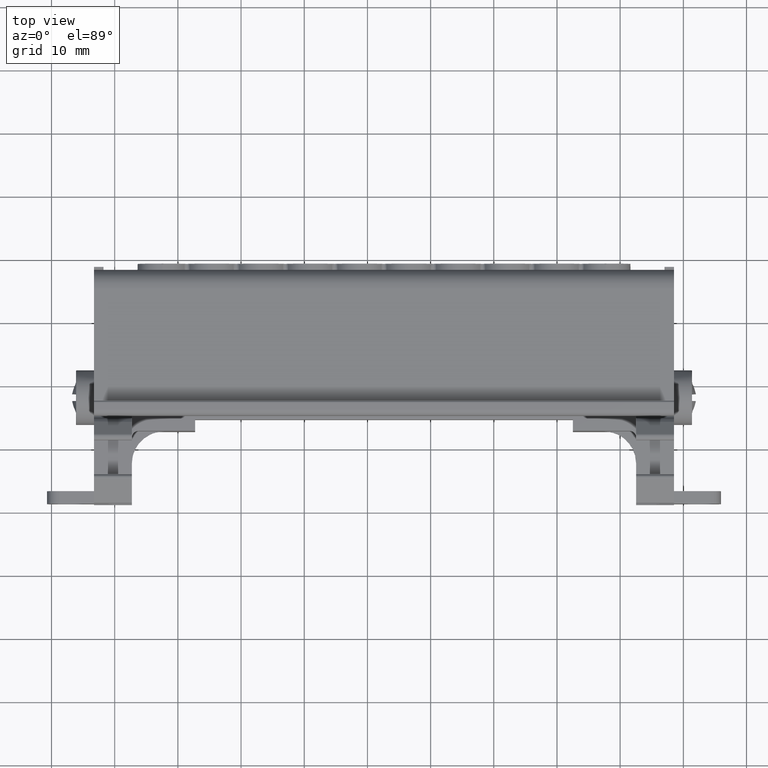
[diagram: clean part render]
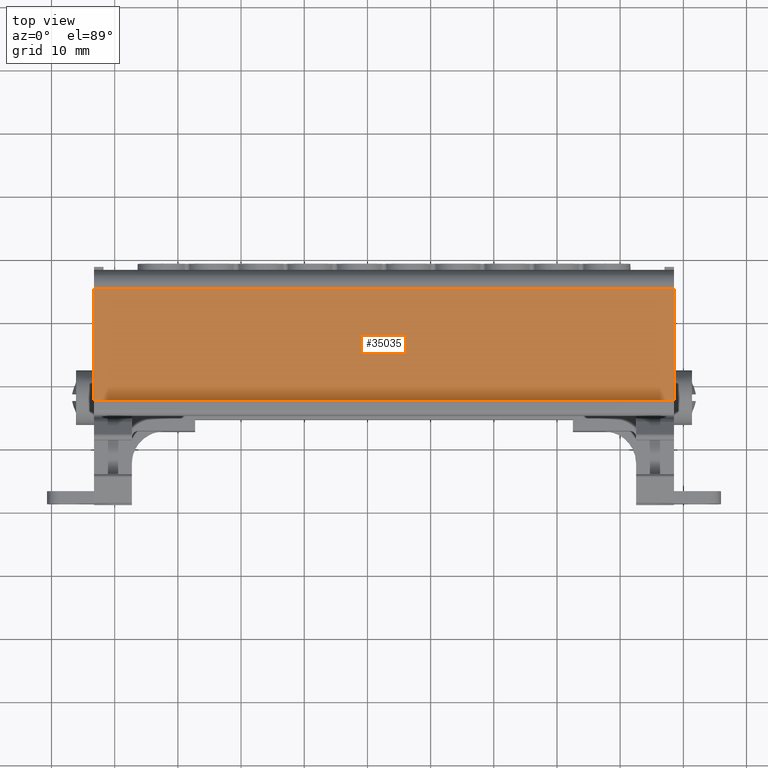
[diagram: same view with one face highlighted and labeled with its STEP entity id]
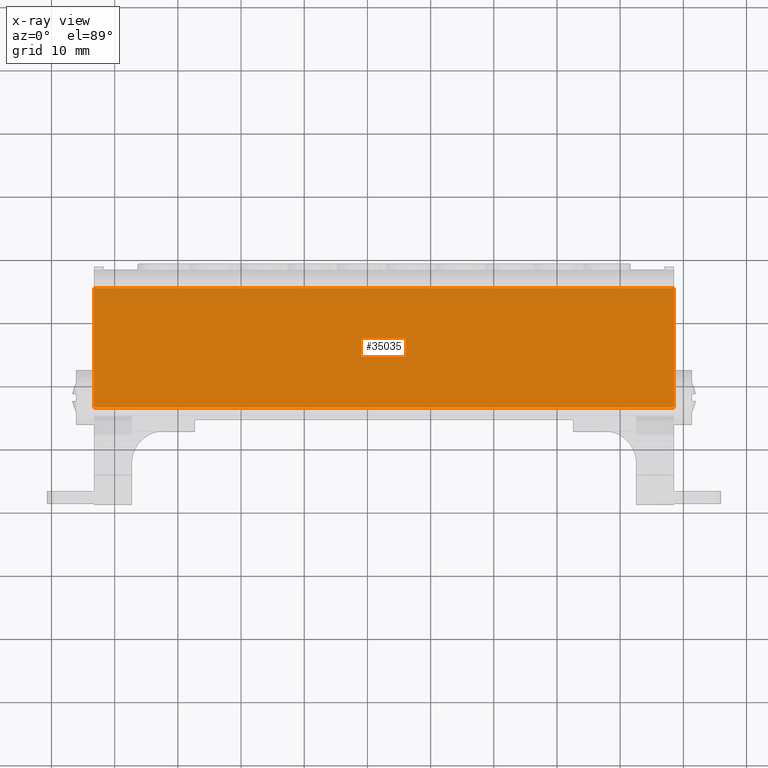
[diagram: x-ray of the same camera — body ghosted, the highlighted face saturated]
A machine part, top view. The second image highlights one B-rep face of the part: STEP entity #35035.
The next image is the same camera in x-ray: the body ghosted, the highlighted face saturated — about 0% of this face is hidden behind the body in this view.
In plain terms, the highlighted planar face has unit normal (-0, -0.0175, -0.9998).
Its self-contained STEP definition (entity closure, byte-faithful):
#2558 = AXIS2_PLACEMENT_3D ( 'NONE', #9568, #9535, #9537 ) ;
#9529 = PLANE ( 'NONE',  #2558 ) ;
#9535 = DIRECTION ( 'NONE',  ( -1.129722639399525300E-014, -0.01745240644082712200, -0.9998476951563294300 ) ) ;
#9537 = DIRECTION ( 'NONE',  ( 0.0000000000000000000, 0.9998476951563293200, -0.01745240644082711800 ) ) ;
#9568 = CARTESIAN_POINT ( 'NONE',  ( -84.51615406934689600, -20.74735800352661700, 103.1478050928436100 ) ) ;
#9571 = FACE_OUTER_BOUND ( 'NONE', #20272, .T. ) ;
#18136 = VECTOR ( 'NONE', #31233, 1000.000000000000000 ) ;
#18382 = VECTOR ( 'NONE', #31611, 1000.000000000000100 ) ;
#18462 = VECTOR ( 'NONE', #31631, 1000.000000000000000 ) ;
#18476 = VECTOR ( 'NONE', #31612, 1000.000000000000000 ) ;
#20272 = EDGE_LOOP ( 'NONE', ( #24476, #24411, #24387, #24400 ) ) ;
#21946 = EDGE_CURVE ( 'NONE', #29658, #29655, #31226, .T. ) ;
#22023 = EDGE_CURVE ( 'NONE', #29658, #29811, #31590, .T. ) ;
#22024 = EDGE_CURVE ( 'NONE', #29857, #29811, #31576, .T. ) ;
#22036 = EDGE_CURVE ( 'NONE', #29857, #29655, #31641, .T. ) ;
#24387 = ORIENTED_EDGE ( 'NONE', *, *, #22024, .T. ) ;
#24400 = ORIENTED_EDGE ( 'NONE', *, *, #22023, .F. ) ;
#24411 = ORIENTED_EDGE ( 'NONE', *, *, #22036, .F. ) ;
#24476 = ORIENTED_EDGE ( 'NONE', *, *, #21946, .T. ) ;
#26580 = CARTESIAN_POINT ( 'NONE',  ( 8.529243657139206300, -43.69490698747513600, 103.5483560503824500 ) ) ;
#26629 = CARTESIAN_POINT ( 'NONE',  ( 8.529243657139005600, -24.74449495281758600, 103.2175753778335700 ) ) ;
#26665 = CARTESIAN_POINT ( 'NONE',  ( -83.26662755420652200, -24.74449495281810100, 103.2175753778343200 ) ) ;
#26682 = CARTESIAN_POINT ( 'NONE',  ( -83.26662755420629500, -43.69490698747564700, 103.5483560503832100 ) ) ;
#29655 = VERTEX_POINT ( 'NONE', #26629 ) ;
#29658 = VERTEX_POINT ( 'NONE', #26580 ) ;
#29811 = VERTEX_POINT ( 'NONE', #26682 ) ;
#29857 = VERTEX_POINT ( 'NONE', #26665 ) ;
#31226 = LINE ( 'NONE', #31229, #18136 ) ;
#31229 = CARTESIAN_POINT ( 'NONE',  ( 8.529243657139208100, -43.69490698747525000, 103.5483560503827200 ) ) ;
#31233 = DIRECTION ( 'NONE',  ( -1.153230164695980900E-014, 0.9998476951563288800, -0.01745240644085613300 ) ) ;
#31576 = LINE ( 'NONE', #31577, #18382 ) ;
#31577 = CARTESIAN_POINT ( 'NONE',  ( -83.26662755420650800, -24.74449495282127700, 103.2175753778340700 ) ) ;
#31581 = CARTESIAN_POINT ( 'NONE',  ( -84.51615406934689600, -43.69490698747525000, 103.5483560503832500 ) ) ;
#31590 = LINE ( 'NONE', #31581, #18476 ) ;
#31611 = DIRECTION ( 'NONE',  ( 1.171535405405446600E-014, -0.9998476951563288800, 0.01745240644085621600 ) ) ;
#31612 = DIRECTION ( 'NONE',  ( -1.000000000000000000, 1.971637866820448600E-016, 1.129550577169540200E-014 ) ) ;
#31631 = DIRECTION ( 'NONE',  ( 1.000000000000000000, -1.971637866820448600E-016, -1.129550577169540200E-014 ) ) ;
#31641 = LINE ( 'NONE', #31650, #18462 ) ;
#31650 = CARTESIAN_POINT ( 'NONE',  ( -84.51615406934689600, -24.74449495282127000, 103.2175753778347100 ) ) ;
#35035 = ADVANCED_FACE ( 'NONE', ( #9571 ), #9529, .F. ) ;